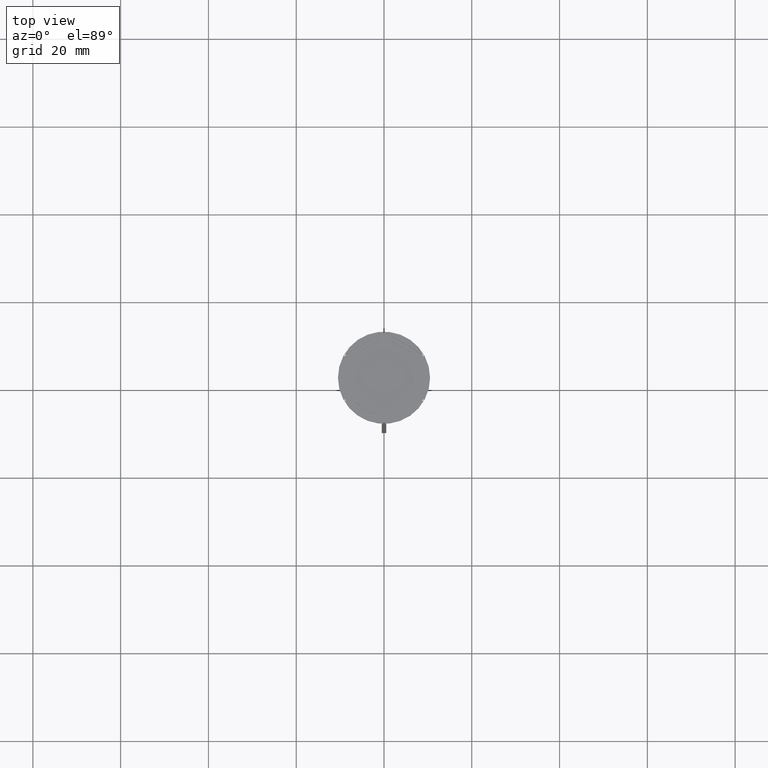
[diagram: clean part render]
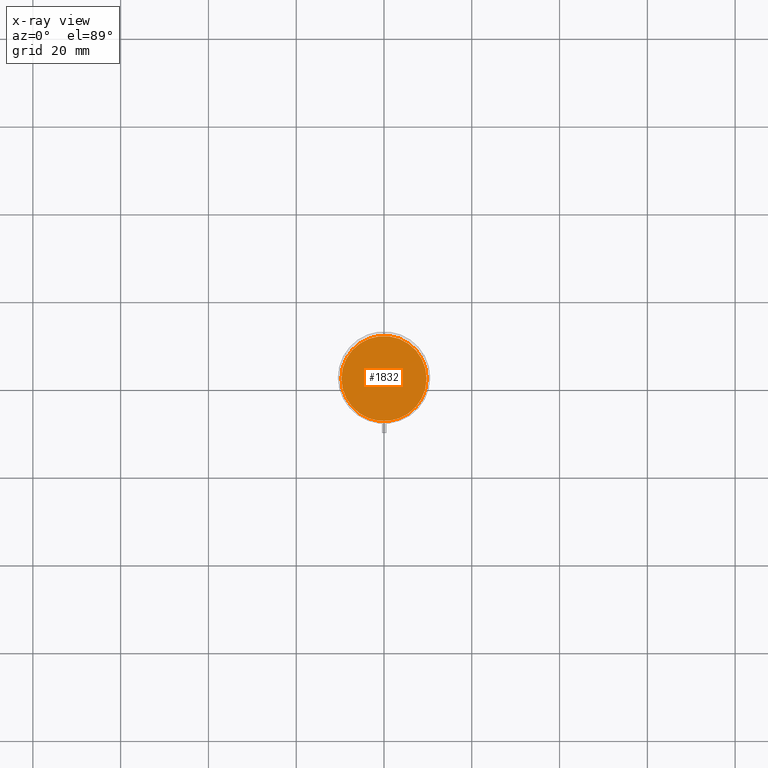
[diagram: x-ray — body ghosted, one internal face saturated and labeled with its STEP entity id]
A machine part, top view, then the same camera in x-ray: the body is ghosted and one INTERNAL B-rep face — a face not visible from any outside direction — is saturated and labeled: STEP entity #1832.
In plain terms, the highlighted planar face has unit normal (0, 0, -1).
Its self-contained STEP definition (entity closure, byte-faithful):
#23 = AXIS2_PLACEMENT_3D ( 'NONE', #2037, #245, #1725 ) ;
#69 = CIRCLE ( 'NONE', #23, 9.700000000000002842 ) ;
#245 = DIRECTION ( 'NONE',  ( -0.000000000000000000, -0.000000000000000000, 1.000000000000000000 ) ) ;
#367 = VERTEX_POINT ( 'NONE', #2139 ) ;
#423 = DIRECTION ( 'NONE',  ( 0.000000000000000000, 0.000000000000000000, -1.000000000000000000 ) ) ;
#442 = CIRCLE ( 'NONE', #1905, 9.700000000000002842 ) ;
#758 = DIRECTION ( 'NONE',  ( -1.000000000000000000, 0.000000000000000000, 0.000000000000000000 ) ) ;
#888 = ORIENTED_EDGE ( 'NONE', *, *, #2568, .T. ) ;
#1042 = CARTESIAN_POINT ( 'NONE',  ( 0.000000000000000000, 0.000000000000000000, -12.00000000000000000 ) ) ;
#1300 = VERTEX_POINT ( 'NONE', #1571 ) ;
#1465 = DIRECTION ( 'NONE',  ( -1.000000000000000000, 0.000000000000000000, -0.000000000000000000 ) ) ;
#1571 = CARTESIAN_POINT ( 'NONE',  ( 9.700000000000002842, 1.206277097160143024E-15, -12.00000000000000000 ) ) ;
#1701 = EDGE_LOOP ( 'NONE', ( #2327, #888 ) ) ;
#1725 = DIRECTION ( 'NONE',  ( -1.000000000000000000, 0.000000000000000000, 0.000000000000000000 ) ) ;
#1832 = ADVANCED_FACE ( 'NONE', ( #2214 ), #2027, .F. ) ;
#1905 = AXIS2_PLACEMENT_3D ( 'NONE', #2534, #2148, #758 ) ;
#1981 = AXIS2_PLACEMENT_3D ( 'NONE', #1042, #423, #1465 ) ;
#2027 = PLANE ( 'NONE',  #1981 ) ;
#2037 = CARTESIAN_POINT ( 'NONE',  ( 0.000000000000000000, 0.000000000000000000, -12.00000000000000000 ) ) ;
#2139 = CARTESIAN_POINT ( 'NONE',  ( -9.700000000000002842, 0.000000000000000000, -12.00000000000000000 ) ) ;
#2148 = DIRECTION ( 'NONE',  ( -0.000000000000000000, -0.000000000000000000, 1.000000000000000000 ) ) ;
#2214 = FACE_OUTER_BOUND ( 'NONE', #1701, .T. ) ;
#2324 = EDGE_CURVE ( 'NONE', #367, #1300, #69, .T. ) ;
#2327 = ORIENTED_EDGE ( 'NONE', *, *, #2324, .T. ) ;
#2534 = CARTESIAN_POINT ( 'NONE',  ( 0.000000000000000000, 0.000000000000000000, -12.00000000000000000 ) ) ;
#2568 = EDGE_CURVE ( 'NONE', #1300, #367, #442, .T. ) ;